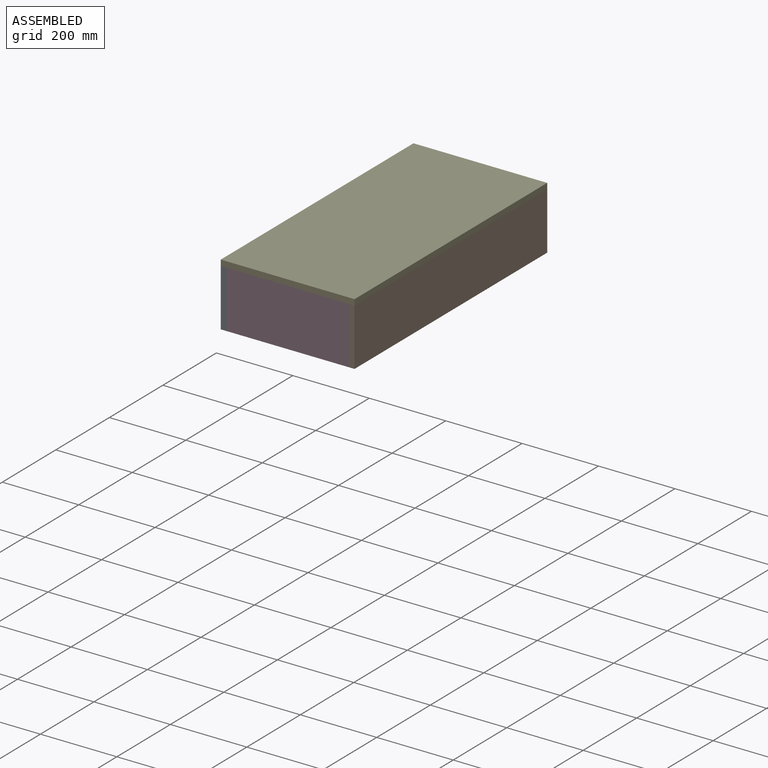
[diagram: assembled view]
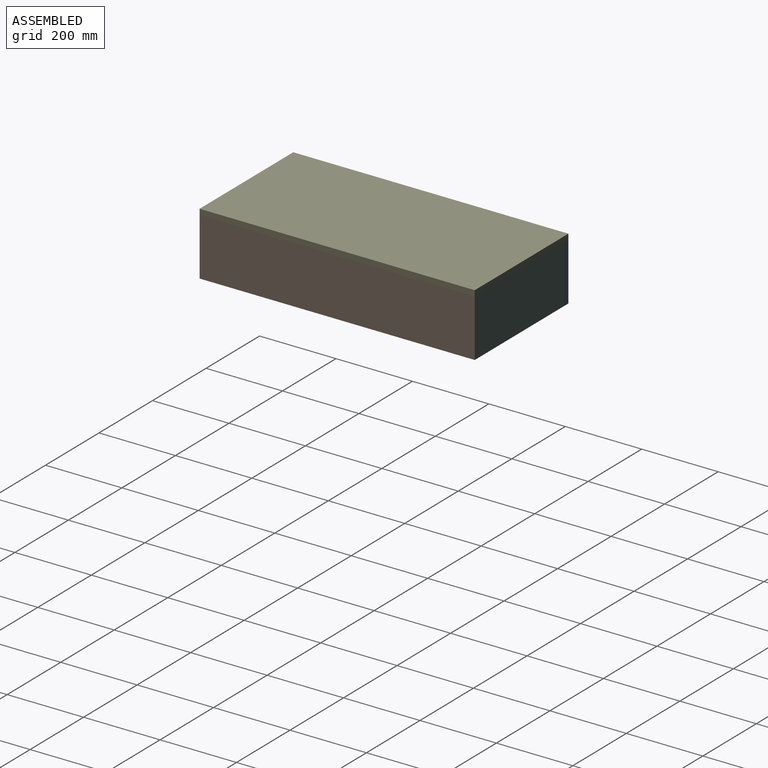
[diagram: assembled view, second angle]
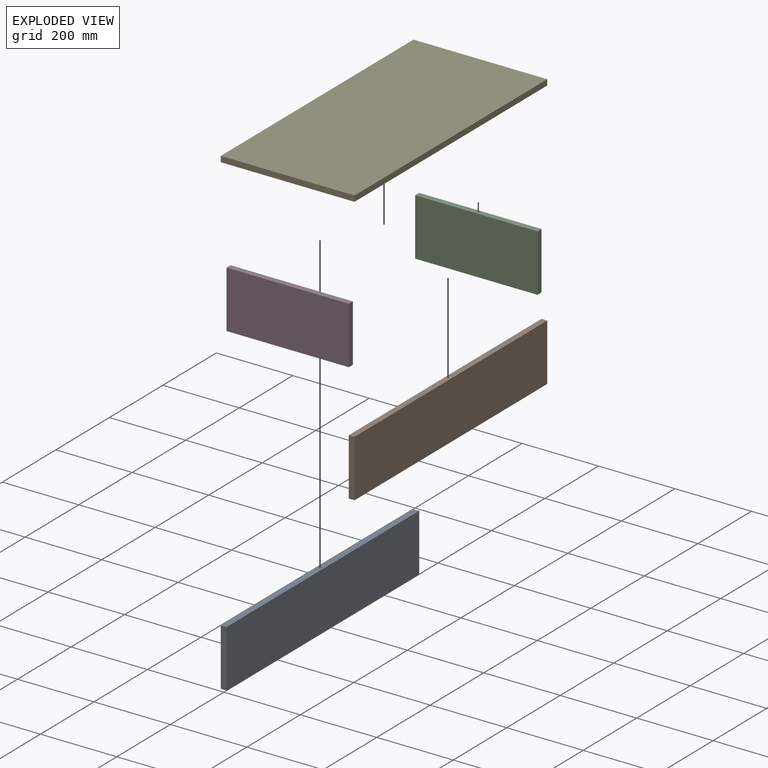
[diagram: exploded view]
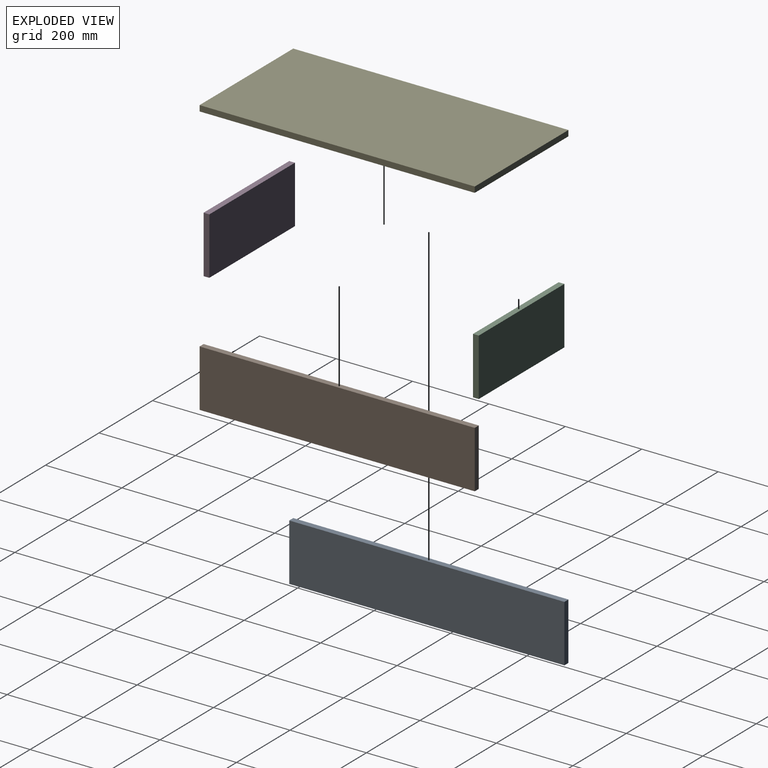
[diagram: exploded view, second angle]
ASSEMBLY  parts=5 mates=4
PART A: 6 faces, bbox 720x15x150 mm
  f0: plane 150x15mm, normal (-1,0,0), area 2250mm2, adj f1,f3,f4,f5
  f1: plane 720x15mm, normal (0,0,-1), area 10800mm2, adj f0,f2,f4,f5
  f2: plane 150x15mm, normal (1,0,0), area 2250mm2, adj f1,f3,f4,f5
  f3: plane 720x15mm, normal (0,0,1), area 10800mm2, adj f0,f2,f4,f5
  f4: plane 720x150mm, normal (0,-1,0), area 108000mm2, adj f0,f1,f2,f3
  f5: plane 720x150mm, normal (0,1,0), area 108000mm2, adj f0,f1,f2,f3
PART B: same geometry as A
PART C: 6 faces, bbox 320x15x150 mm
  f0: plane 150x15mm, normal (-1,0,0), area 2250mm2, adj f1,f3,f4,f5
  f1: plane 320x15mm, normal (0,0,-1), area 4800mm2, adj f0,f2,f4,f5
  f2: plane 150x15mm, normal (1,0,0), area 2250mm2, adj f1,f3,f4,f5
  f3: plane 320x15mm, normal (0,0,1), area 4800mm2, adj f0,f2,f4,f5
  f4: plane 320x150mm, normal (0,-1,0), area 48000mm2, adj f0,f1,f2,f3
  f5: plane 320x150mm, normal (0,1,0), area 48000mm2, adj f0,f1,f2,f3
PART D: same geometry as C
PART E: 6 faces, bbox 720x15x350 mm
  f0: plane 350x15mm, normal (-1,0,0), area 5250mm2, adj f1,f3,f4,f5
  f1: plane 720x15mm, normal (0,0,-1), area 10800mm2, adj f0,f2,f4,f5
  f2: plane 350x15mm, normal (1,0,0), area 5250mm2, adj f1,f3,f4,f5
  f3: plane 720x15mm, normal (0,0,1), area 10800mm2, adj f0,f2,f4,f5
  f4: plane 720x350mm, normal (0,-1,0), area 252000mm2, adj f0,f1,f2,f3
  f5: plane 720x350mm, normal (0,1,0), area 252000mm2, adj f0,f1,f2,f3
PLACE A rot(axis=(0.71,-0.71,0),180deg) t=(0,708.49,-138.77)mm
PLACE B rot(axis=(0.71,0.71,0),180deg) t=(350,-11.51,-138.77)mm
PLACE C rot(axis=(1,0,0),180deg) t=(15,693.49,-138.77)mm
PLACE D rot(axis=(0,1,0),180deg) t=(335,3.49,-138.77)mm
PLACE E rot(axis=(0.58,0.58,0.58),120deg) t=(0,-11.51,-123.77)mm fixed
MATE fastened E.f4 <-> B.f1  axis (0,0,-1) through (350,348.49,-138.77)mm
MATE fastened E.f4 <-> A.f1  axis (0,0,-1) through (0,348.49,-138.77)mm
MATE fastened E.f4 <-> D.f1  axis (0,0,-1) through (175,-11.51,-138.77)mm
MATE fastened E.f4 <-> C.f1  axis (0,0,-1) through (175,708.49,-138.77)mm
